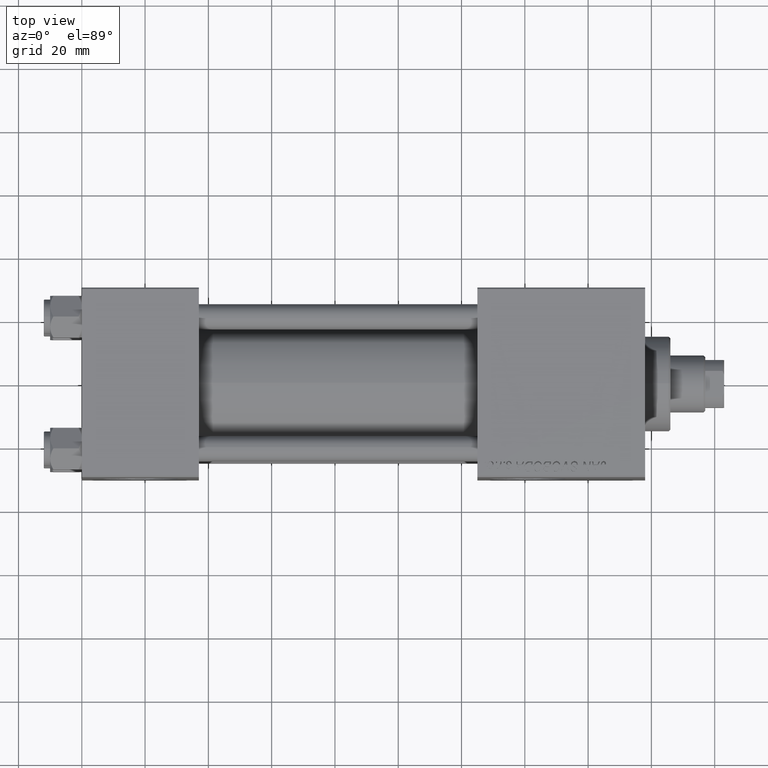
[diagram: clean part render]
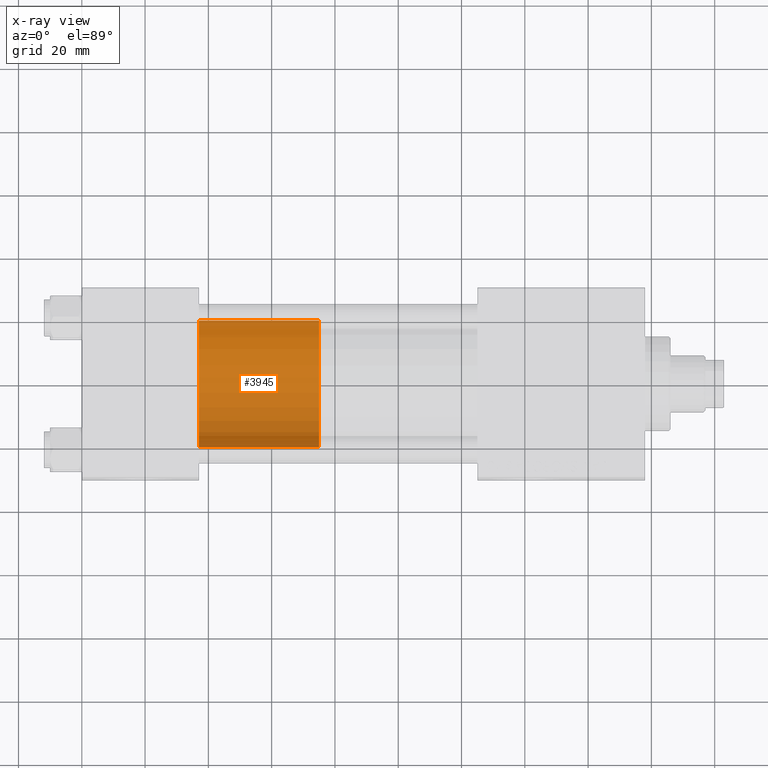
[diagram: x-ray — body ghosted, one internal face saturated and labeled with its STEP entity id]
A machine part, top view, then the same camera in x-ray: the body is ghosted and one INTERNAL B-rep face — a face not visible from any outside direction — is saturated and labeled: STEP entity #3945.
In plain terms, the highlighted cylindrical surface (partial cylindrical patch) has radius 20 mm, axis along (-1, 0, 0).
Its self-contained STEP definition (entity closure, byte-faithful):
#3945 = ADVANCED_FACE ( 'NONE', ( #27597 ), #39517, .T. ) ;
#4772 = ORIENTED_EDGE ( 'NONE', *, *, #26210, .T. ) ;
#5723 = VERTEX_POINT ( 'NONE', #49480 ) ;
#5794 = LINE ( 'NONE', #44649, #32234 ) ;
#6876 = DIRECTION ( 'NONE',  ( 1.000000000000000000, 0.000000000000000000, 0.000000000000000000 ) ) ;
#7466 = CARTESIAN_POINT ( 'NONE',  ( 0.000000000000000000, 0.000000000000000000, 0.000000000000000000 ) ) ;
#7587 = EDGE_CURVE ( 'NONE', #17010, #46687, #5794, .T. ) ;
#8615 = DIRECTION ( 'NONE',  ( -0.000000000000000000, -0.000000000000000000, -1.000000000000000000 ) ) ;
#9119 = CARTESIAN_POINT ( 'NONE',  ( -20.00000000000000000, 0.000000000000000000, 38.00000000000000000 ) ) ;
#11454 = AXIS2_PLACEMENT_3D ( 'NONE', #47155, #42588, #18998 ) ;
#11997 = AXIS2_PLACEMENT_3D ( 'NONE', #41663, #33028, #6876 ) ;
#12029 = CARTESIAN_POINT ( 'NONE',  ( 20.00000000000000000, 2.449293598294706513E-15, 38.00000000000000000 ) ) ;
#12218 = EDGE_CURVE ( 'NONE', #17010, #5723, #48498, .T. ) ;
#15049 = ORIENTED_EDGE ( 'NONE', *, *, #33993, .F. ) ;
#15545 = ORIENTED_EDGE ( 'NONE', *, *, #12218, .F. ) ;
#17010 = VERTEX_POINT ( 'NONE', #12029 ) ;
#17746 = DIRECTION ( 'NONE',  ( -0.000000000000000000, -0.000000000000000000, -1.000000000000000000 ) ) ;
#18998 = DIRECTION ( 'NONE',  ( -1.000000000000000000, 0.000000000000000000, 0.000000000000000000 ) ) ;
#26210 = EDGE_CURVE ( 'NONE', #46687, #30863, #42327, .T. ) ;
#27597 = FACE_OUTER_BOUND ( 'NONE', #49776, .T. ) ;
#30804 = DIRECTION ( 'NONE',  ( 1.000000000000000000, 0.000000000000000000, 0.000000000000000000 ) ) ;
#30863 = VERTEX_POINT ( 'NONE', #43208 ) ;
#32234 = VECTOR ( 'NONE', #17746, 1000.000000000000000 ) ;
#32677 = ORIENTED_EDGE ( 'NONE', *, *, #7587, .T. ) ;
#33028 = DIRECTION ( 'NONE',  ( 0.000000000000000000, 0.000000000000000000, 1.000000000000000000 ) ) ;
#33394 = AXIS2_PLACEMENT_3D ( 'NONE', #7466, #37912, #30804 ) ;
#33993 = EDGE_CURVE ( 'NONE', #5723, #30863, #39831, .T. ) ;
#34084 = CARTESIAN_POINT ( 'NONE',  ( 20.00000000000000000, 2.449293598294706513E-15, 0.000000000000000000 ) ) ;
#37912 = DIRECTION ( 'NONE',  ( 0.000000000000000000, 0.000000000000000000, 1.000000000000000000 ) ) ;
#39517 = CYLINDRICAL_SURFACE ( 'NONE', #11454, 20.00000000000000000 ) ;
#39831 = LINE ( 'NONE', #9119, #42569 ) ;
#41663 = CARTESIAN_POINT ( 'NONE',  ( 0.000000000000000000, 0.000000000000000000, 38.00000000000000000 ) ) ;
#42327 = CIRCLE ( 'NONE', #33394, 20.00000000000000000 ) ;
#42569 = VECTOR ( 'NONE', #8615, 1000.000000000000000 ) ;
#42588 = DIRECTION ( 'NONE',  ( -0.000000000000000000, -0.000000000000000000, -1.000000000000000000 ) ) ;
#43208 = CARTESIAN_POINT ( 'NONE',  ( -20.00000000000000000, 0.000000000000000000, 0.000000000000000000 ) ) ;
#44649 = CARTESIAN_POINT ( 'NONE',  ( 20.00000000000000000, 2.449293598294706513E-15, 38.00000000000000000 ) ) ;
#46687 = VERTEX_POINT ( 'NONE', #34084 ) ;
#47155 = CARTESIAN_POINT ( 'NONE',  ( 0.000000000000000000, 0.000000000000000000, 38.00000000000000000 ) ) ;
#48498 = CIRCLE ( 'NONE', #11997, 20.00000000000000000 ) ;
#49480 = CARTESIAN_POINT ( 'NONE',  ( -20.00000000000000000, 0.000000000000000000, 38.00000000000000000 ) ) ;
#49776 = EDGE_LOOP ( 'NONE', ( #15545, #32677, #4772, #15049 ) ) ;